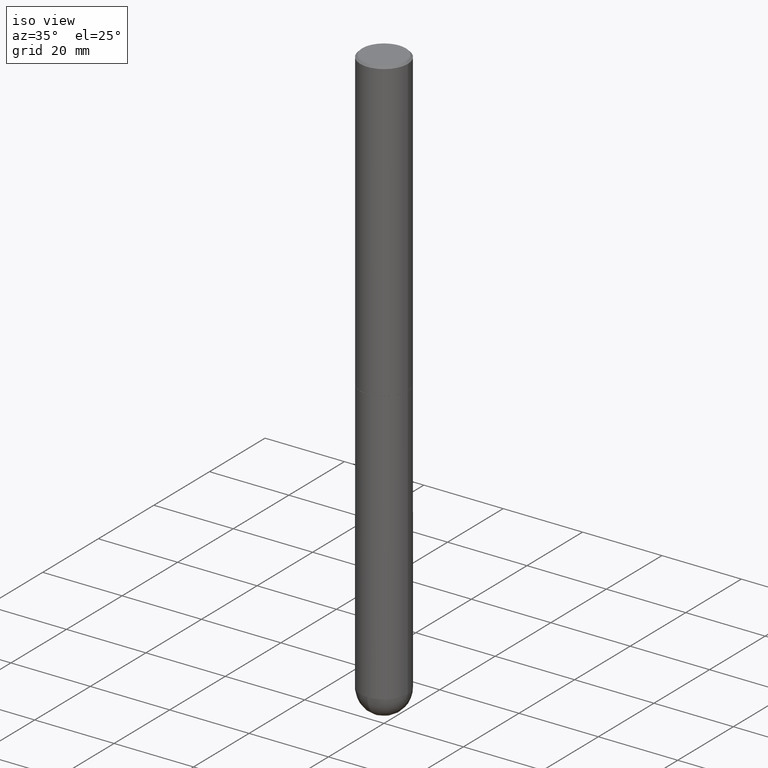
[diagram: clean part render]
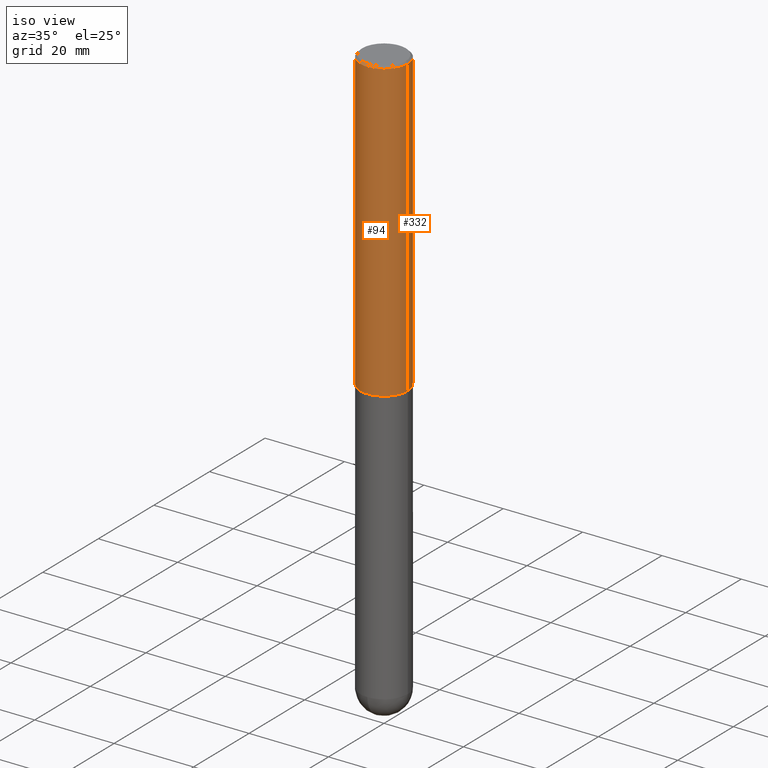
[diagram: same view with one multi-face feature highlighted, each face labeled with its STEP entity id]
A machine part, iso view. The highlighted faces form ONE feature: a constant-radius fillet chain: 2 tangent blend faces with common blend radius 5.9995 mm. The faces share edges in the B-rep.
Their STEP definitions:
[1] entity #94 (Cylinder):
#10 = CARTESIAN_POINT ( 'NONE',  ( 0.2362000000000003264, -1.195518125233281169E-14, -2.951700000000000212 ) ) ;
#12 = ORIENTED_EDGE ( 'NONE', *, *, #366, .T. ) ;
#18 = DIRECTION ( 'NONE',  ( -2.445468806185136597E-29, 3.491481338843145583E-15, 1.000000000000000000 ) ) ;
#36 = AXIS2_PLACEMENT_3D ( 'NONE', #278, #272, #274 ) ;
#40 = FACE_OUTER_BOUND ( 'NONE', #293, .T. ) ;
#42 = EDGE_CURVE ( 'NONE', #188, #214, #302, .T. ) ;
#47 = LINE ( 'NONE', #109, #105 ) ;
#94 = ADVANCED_FACE ( 'NONE', ( #40 ), #331, .T. ) ;
#103 = CARTESIAN_POINT ( 'NONE',  ( 0.000000000000000000, 0.000000000000000000, 0.000000000000000000 ) ) ;
#105 = VECTOR ( 'NONE', #309, 39.37007874015748143 ) ;
#107 = LINE ( 'NONE', #203, #224 ) ;
#109 = CARTESIAN_POINT ( 'NONE',  ( -0.2362000000000001598, 1.678301941865357775E-15, -1.161852468318209598E-29 ) ) ;
#110 = DIRECTION ( 'NONE',  ( -2.445468806185136877E-29, 3.491481338843145188E-15, 1.000000000000000000 ) ) ;
#135 = VERTEX_POINT ( 'NONE', #297 ) ;
#175 = AXIS2_PLACEMENT_3D ( 'NONE', #103, #256, #391 ) ;
#188 = VERTEX_POINT ( 'NONE', #295 ) ;
#203 = CARTESIAN_POINT ( 'NONE',  ( 0.2362000000000001598, -1.649375784469497314E-15, 1.151752954443000929E-29 ) ) ;
#214 = VERTEX_POINT ( 'NONE', #301 ) ;
#220 = VERTEX_POINT ( 'NONE', #10 ) ;
#224 = VECTOR ( 'NONE', #110, 39.37007874015748143 ) ;
#238 = ORIENTED_EDGE ( 'NONE', *, *, #407, .T. ) ;
#256 = DIRECTION ( 'NONE',  ( -2.445468806185136597E-29, 3.491481338843145583E-15, 1.000000000000000000 ) ) ;
#272 = DIRECTION ( 'NONE',  ( -2.445468806185136597E-29, 3.491481338843145583E-15, 1.000000000000000000 ) ) ;
#273 = CARTESIAN_POINT ( 'NONE',  ( 7.218290275216666916E-29, -1.030580546786331359E-14, -2.951700000000000212 ) ) ;
#274 = DIRECTION ( 'NONE',  ( 1.000000000000000000, -6.982962677686266711E-15, 0.000000000000000000 ) ) ;
#278 = CARTESIAN_POINT ( 'NONE',  ( 4.890937612370285420E-31, -6.982962677686308865E-17, -0.02000000000000005246 ) ) ;
#293 = EDGE_LOOP ( 'NONE', ( #393, #12, #238, #325 ) ) ;
#295 = CARTESIAN_POINT ( 'NONE',  ( -0.2361999999999999933, 1.579546157692633030E-15, -0.02000000000000005246 ) ) ;
#297 = CARTESIAN_POINT ( 'NONE',  ( -0.2362000000000003264, -3.509515605454725737E-15, -2.951700000000000212 ) ) ;
#301 = CARTESIAN_POINT ( 'NONE',  ( 0.2361999999999999933, -1.690279253850498771E-15, -0.02000000000000005246 ) ) ;
#302 = CIRCLE ( 'NONE', #36, 0.2361999999999999933 ) ;
#309 = DIRECTION ( 'NONE',  ( -2.445468806185136877E-29, 3.491481338843145188E-15, 1.000000000000000000 ) ) ;
#325 = ORIENTED_EDGE ( 'NONE', *, *, #42, .F. ) ;
#331 = CYLINDRICAL_SURFACE ( 'NONE', #175, 0.2362000000000001598 ) ;
#338 = DIRECTION ( 'NONE',  ( 1.000000000000000000, -6.982962677686263555E-15, 0.000000000000000000 ) ) ;
#366 = EDGE_CURVE ( 'NONE', #135, #220, #397, .T. ) ;
#375 = AXIS2_PLACEMENT_3D ( 'NONE', #273, #18, #338 ) ;
#380 = EDGE_CURVE ( 'NONE', #135, #188, #47, .T. ) ;
#391 = DIRECTION ( 'NONE',  ( 1.000000000000000000, -6.982962677686266711E-15, 4.876176775795936353E-29 ) ) ;
#393 = ORIENTED_EDGE ( 'NONE', *, *, #380, .F. ) ;
#397 = CIRCLE ( 'NONE', #375, 0.2362000000000003264 ) ;
#407 = EDGE_CURVE ( 'NONE', #220, #214, #107, .T. ) ;
[2] entity #332 (Cylinder):
#10 = CARTESIAN_POINT ( 'NONE',  ( 0.2362000000000003264, -1.195518125233281169E-14, -2.951700000000000212 ) ) ;
#27 = EDGE_LOOP ( 'NONE', ( #257, #231, #75, #253 ) ) ;
#46 = EDGE_CURVE ( 'NONE', #220, #135, #310, .T. ) ;
#47 = LINE ( 'NONE', #109, #105 ) ;
#55 = CYLINDRICAL_SURFACE ( 'NONE', #249, 0.2362000000000001598 ) ;
#75 = ORIENTED_EDGE ( 'NONE', *, *, #98, .F. ) ;
#83 = DIRECTION ( 'NONE',  ( -2.445468806185136597E-29, 3.491481338843145583E-15, 1.000000000000000000 ) ) ;
#95 = CARTESIAN_POINT ( 'NONE',  ( 4.890937612370285420E-31, -6.982962677686308865E-17, -0.02000000000000005246 ) ) ;
#98 = EDGE_CURVE ( 'NONE', #214, #188, #117, .T. ) ;
#105 = VECTOR ( 'NONE', #309, 39.37007874015748143 ) ;
#107 = LINE ( 'NONE', #203, #224 ) ;
#109 = CARTESIAN_POINT ( 'NONE',  ( -0.2362000000000001598, 1.678301941865357775E-15, -1.161852468318209598E-29 ) ) ;
#110 = DIRECTION ( 'NONE',  ( -2.445468806185136877E-29, 3.491481338843145188E-15, 1.000000000000000000 ) ) ;
#117 = CIRCLE ( 'NONE', #359, 0.2361999999999999933 ) ;
#130 = DIRECTION ( 'NONE',  ( -2.445468806185136597E-29, 3.491481338843145583E-15, 1.000000000000000000 ) ) ;
#135 = VERTEX_POINT ( 'NONE', #297 ) ;
#145 = CARTESIAN_POINT ( 'NONE',  ( 0.000000000000000000, 0.000000000000000000, 0.000000000000000000 ) ) ;
#164 = AXIS2_PLACEMENT_3D ( 'NONE', #243, #83, #209 ) ;
#177 = FACE_OUTER_BOUND ( 'NONE', #27, .T. ) ;
#188 = VERTEX_POINT ( 'NONE', #295 ) ;
#199 = DIRECTION ( 'NONE',  ( 1.000000000000000000, -6.982962677686266711E-15, 4.876176775795936353E-29 ) ) ;
#203 = CARTESIAN_POINT ( 'NONE',  ( 0.2362000000000001598, -1.649375784469497314E-15, 1.151752954443000929E-29 ) ) ;
#209 = DIRECTION ( 'NONE',  ( 1.000000000000000000, -6.982962677686263555E-15, 0.000000000000000000 ) ) ;
#214 = VERTEX_POINT ( 'NONE', #301 ) ;
#220 = VERTEX_POINT ( 'NONE', #10 ) ;
#224 = VECTOR ( 'NONE', #110, 39.37007874015748143 ) ;
#231 = ORIENTED_EDGE ( 'NONE', *, *, #380, .T. ) ;
#237 = DIRECTION ( 'NONE',  ( -2.445468806185136597E-29, 3.491481338843145583E-15, 1.000000000000000000 ) ) ;
#243 = CARTESIAN_POINT ( 'NONE',  ( 7.218290275216666916E-29, -1.030580546786331359E-14, -2.951700000000000212 ) ) ;
#249 = AXIS2_PLACEMENT_3D ( 'NONE', #145, #237, #199 ) ;
#253 = ORIENTED_EDGE ( 'NONE', *, *, #407, .F. ) ;
#257 = ORIENTED_EDGE ( 'NONE', *, *, #46, .T. ) ;
#295 = CARTESIAN_POINT ( 'NONE',  ( -0.2361999999999999933, 1.579546157692633030E-15, -0.02000000000000005246 ) ) ;
#297 = CARTESIAN_POINT ( 'NONE',  ( -0.2362000000000003264, -3.509515605454725737E-15, -2.951700000000000212 ) ) ;
#301 = CARTESIAN_POINT ( 'NONE',  ( 0.2361999999999999933, -1.690279253850498771E-15, -0.02000000000000005246 ) ) ;
#309 = DIRECTION ( 'NONE',  ( -2.445468806185136877E-29, 3.491481338843145188E-15, 1.000000000000000000 ) ) ;
#310 = CIRCLE ( 'NONE', #164, 0.2362000000000003264 ) ;
#332 = ADVANCED_FACE ( 'NONE', ( #177 ), #55, .T. ) ;
#333 = DIRECTION ( 'NONE',  ( 1.000000000000000000, -6.982962677686266711E-15, 0.000000000000000000 ) ) ;
#359 = AXIS2_PLACEMENT_3D ( 'NONE', #95, #130, #333 ) ;
#380 = EDGE_CURVE ( 'NONE', #135, #188, #47, .T. ) ;
#407 = EDGE_CURVE ( 'NONE', #220, #214, #107, .T. ) ;